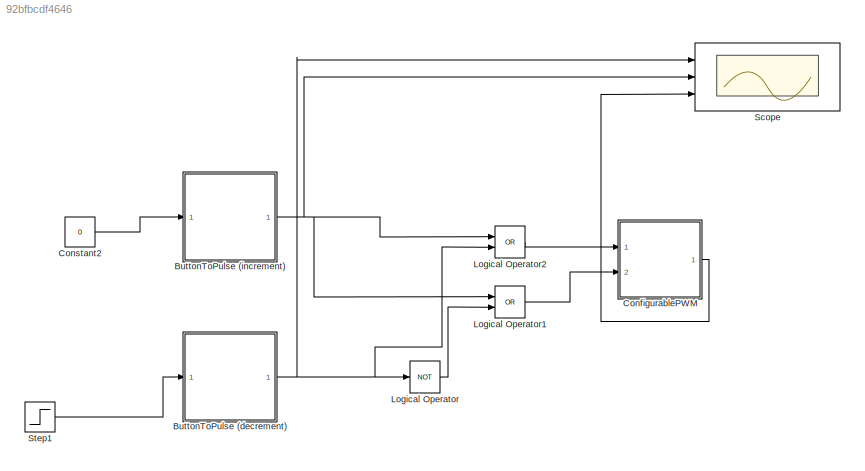
MODEL slx_92bfbcdf4646
KIND model
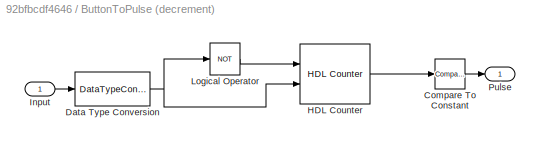
BLOCK [SubSystem] ButtonToPulse (decrement)
  Ports = [1, 1]
  RequestExecContextInheritance = off
BLOCK [Reference] ButtonToPulse (decrement)/Compare To Constant  REF=simulink/Logic and Bit
Operations/Compare
To Constant
  OutDataTypeStr = boolean
  Ports = [1, 1]
  SourceBlock = simulink/Logic and Bit\nOperations/Compare\nTo Constant
  SourceType = Compare To Constant
  ZeroCross = on
  const = 12500
  relop = ==
BLOCK [DataTypeConversion] ButtonToPulse (decrement)/Data Type Conversion
  RndMeth = Floor
  SaturateOnIntegerOverflow = off
BLOCK [Reference] ButtonToPulse (decrement)/HDL Counter  REF=hdlsllib/HDL Operations/HDL Counter
  CountDataType = Unsigned
  CountDirPort = off
  CountEnbPort = on
  CountFracLen = 0
  CountFrom = 0
  CountFromType = Initial value
  CountInit = 0
  CountLoadPort = off
  CountMax = 50000
  CountResetPort = on
  CountSampTime = 1
  CountStep = 1
  CountType = Count limited
  CountWordLen = 32
  Ports = [2, 1]
  SourceBlock = hdlsllib/HDL Operations/HDL Counter
  SourceType = HDL Counter
BLOCK [Inport] ButtonToPulse (decrement)/Input
  IconDisplay = Port number
BLOCK [Logic] ButtonToPulse (decrement)/Logical Operator
  AllPortsSameDT = off
  IconShape = distinctive
  Operator = NOT
  OutDataTypeStr = boolean
  Ports = [1, 1]
BLOCK [Outport] ButtonToPulse (decrement)/Pulse
  IconDisplay = Port number
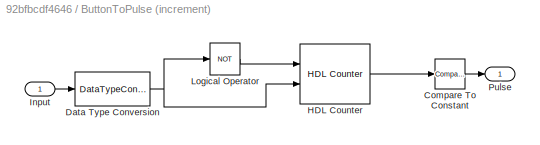
BLOCK [SubSystem] ButtonToPulse (increment)
  Ports = [1, 1]
  RequestExecContextInheritance = off
BLOCK [Reference] ButtonToPulse (increment)/Compare To Constant  REF=simulink/Logic and Bit
Operations/Compare
To Constant
  OutDataTypeStr = boolean
  Ports = [1, 1]
  SourceBlock = simulink/Logic and Bit\nOperations/Compare\nTo Constant
  SourceType = Compare To Constant
  ZeroCross = on
  const = 12500
  relop = ==
BLOCK [DataTypeConversion] ButtonToPulse (increment)/Data Type Conversion
  RndMeth = Floor
  SaturateOnIntegerOverflow = off
BLOCK [Reference] ButtonToPulse (increment)/HDL Counter  REF=hdlsllib/HDL Operations/HDL Counter
  CountDataType = Unsigned
  CountDirPort = off
  CountEnbPort = on
  CountFracLen = 0
  CountFrom = 0
  CountFromType = Initial value
  CountInit = 0
  CountLoadPort = off
  CountMax = 50000
  CountResetPort = on
  CountSampTime = 1
  CountStep = 1
  CountType = Count limited
  CountWordLen = 32
  Ports = [2, 1]
  SourceBlock = hdlsllib/HDL Operations/HDL Counter
  SourceType = HDL Counter
BLOCK [Inport] ButtonToPulse (increment)/Input
  IconDisplay = Port number
BLOCK [Logic] ButtonToPulse (increment)/Logical Operator
  AllPortsSameDT = off
  IconShape = distinctive
  Operator = NOT
  OutDataTypeStr = boolean
  Ports = [1, 1]
BLOCK [Outport] ButtonToPulse (increment)/Pulse
  IconDisplay = Port number
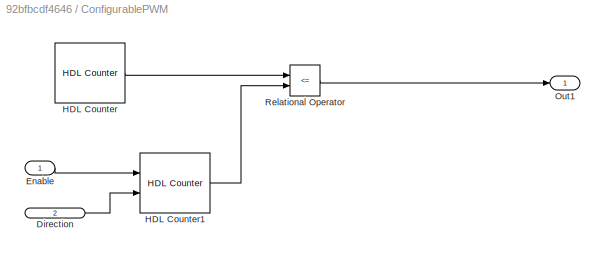
BLOCK [SubSystem] ConfigurablePWM
  Ports = [2, 1]
  RequestExecContextInheritance = off
BLOCK [Inport] ConfigurablePWM/Direction
  IconDisplay = Port number
  Port = 2
BLOCK [Inport] ConfigurablePWM/Enable
  IconDisplay = Port number
BLOCK [Reference] ConfigurablePWM/HDL Counter  REF=hdlsllib/HDL Operations/HDL Counter
  CountDataType = Unsigned
  CountDirPort = off
  CountEnbPort = off
  CountFracLen = 0
  CountFrom = 0
  CountFromType = Initial value
  CountInit = 0
  CountLoadPort = off
  CountMax = 1000
  CountResetPort = off
  CountSampTime = 1
  CountStep = 1
  CountType = Count limited
  CountWordLen = 20
  Ports = [0, 1]
  SourceBlock = hdlsllib/HDL Operations/HDL Counter
  SourceType = HDL Counter
BLOCK [Reference] ConfigurablePWM/HDL Counter1  REF=hdlsllib/HDL Operations/HDL Counter
  CountDataType = Unsigned
  CountDirPort = on
  CountEnbPort = on
  CountFracLen = 0
  CountFrom = 30
  CountFromType = Specify
  CountInit = 75
  CountLoadPort = off
  CountMax = 120
  CountResetPort = off
  CountSampTime = 1
  CountStep = 6
  CountType = Count limited
  CountWordLen = 8
  Ports = [2, 1]
  SourceBlock = hdlsllib/HDL Operations/HDL Counter
  SourceType = HDL Counter
BLOCK [Outport] ConfigurablePWM/Out1
  IconDisplay = Port number
BLOCK [RelationalOperator] ConfigurablePWM/Relational Operator
  InputSameDT = off
  Operator = <=
  OutDataTypeStr = boolean
  Ports = [2, 1]
BLOCK [Constant] Constant2
  Value = 0
BLOCK [Logic] Logical Operator
  AllPortsSameDT = off
  IconShape = distinctive
  Operator = NOT
  OutDataTypeStr = boolean
  Ports = [1, 1]
BLOCK [Logic] Logical Operator1
  AllPortsSameDT = off
  IconShape = distinctive
  Operator = OR
  OutDataTypeStr = boolean
  Ports = [2, 1]
BLOCK [Logic] Logical Operator2
  AllPortsSameDT = off
  IconShape = distinctive
  Operator = OR
  OutDataTypeStr = boolean
  Ports = [2, 1]
BLOCK [Scope] Scope
  Floating = off
  LimitDataPoints = off
  NumInputPorts = 3
  Ports = [3]
  ShowLegends = off
  YMax = 5~5~5
  YMin = -5~-5~-5
  ZoomMode = xonly
BLOCK [Step] Step1
  After = 0
  Before = 1
  SampleTime = 50000
  Time = 25000
LINE ButtonToPulse (decrement)/Compare To Constant:1 -> ButtonToPulse (decrement)/Pulse:1
NET ButtonToPulse (decrement)/Data Type Conversion:1 -> ButtonToPulse (decrement)/HDL Counter:2, ButtonToPulse (decrement)/Logical Operator:1
LINE ButtonToPulse (decrement)/HDL Counter:1 -> ButtonToPulse (decrement)/Compare To Constant:1
LINE ButtonToPulse (decrement)/Input:1 -> ButtonToPulse (decrement)/Data Type Conversion:1
LINE ButtonToPulse (decrement)/Logical Operator:1 -> ButtonToPulse (decrement)/HDL Counter:1
NET ButtonToPulse (decrement):1 -> Logical Operator2:2, Logical Operator:1, Scope:1
LINE ButtonToPulse (increment)/Compare To Constant:1 -> ButtonToPulse (increment)/Pulse:1
NET ButtonToPulse (increment)/Data Type Conversion:1 -> ButtonToPulse (increment)/HDL Counter:2, ButtonToPulse (increment)/Logical Operator:1
LINE ButtonToPulse (increment)/HDL Counter:1 -> ButtonToPulse (increment)/Compare To Constant:1
LINE ButtonToPulse (increment)/Input:1 -> ButtonToPulse (increment)/Data Type Conversion:1
LINE ButtonToPulse (increment)/Logical Operator:1 -> ButtonToPulse (increment)/HDL Counter:1
NET ButtonToPulse (increment):1 -> Logical Operator1:1, Logical Operator2:1, Scope:2
LINE ConfigurablePWM/Direction:1 -> ConfigurablePWM/HDL Counter1:2
LINE ConfigurablePWM/Enable:1 -> ConfigurablePWM/HDL Counter1:1
LINE ConfigurablePWM/HDL Counter1:1 -> ConfigurablePWM/Relational Operator:2
LINE ConfigurablePWM/HDL Counter:1 -> ConfigurablePWM/Relational Operator:1
LINE ConfigurablePWM/Relational Operator:1 -> ConfigurablePWM/Out1:1
LINE ConfigurablePWM:1 -> Scope:3
LINE Constant2:1 -> ButtonToPulse (increment):1
LINE Logical Operator1:1 -> ConfigurablePWM:2
LINE Logical Operator2:1 -> ConfigurablePWM:1
LINE Logical Operator:1 -> Logical Operator1:2
LINE Step1:1 -> ButtonToPulse (decrement):1
note: NET lines group one-source signal fan-out (src -> all destinations, sorted); 1:1 wires keep LINE
